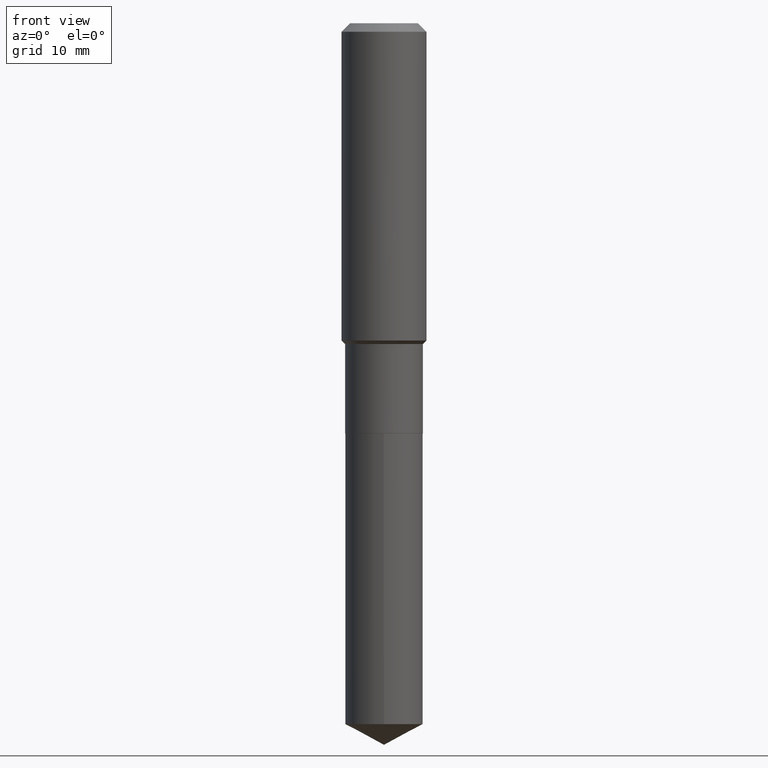
[diagram: clean part render]
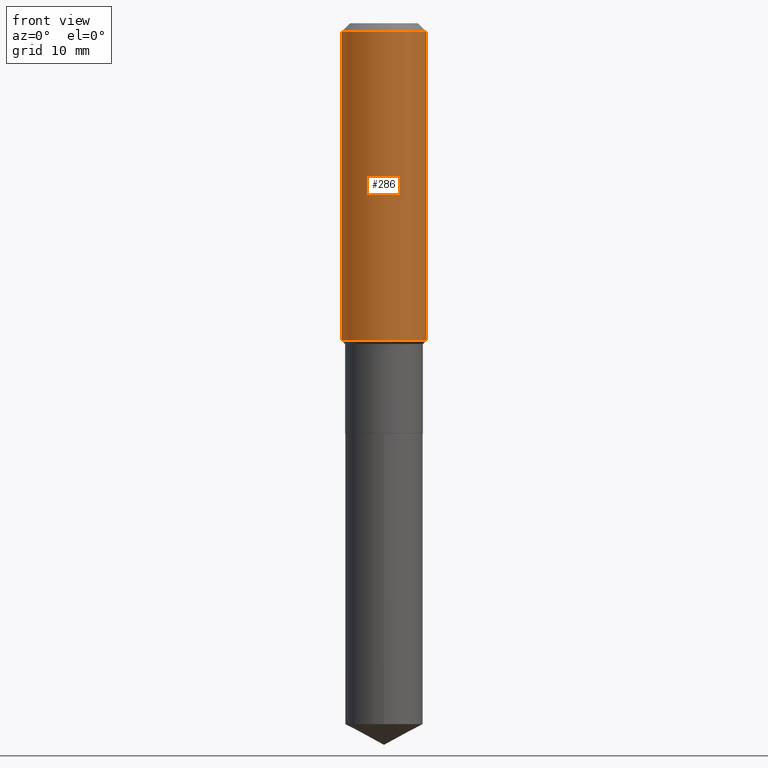
[diagram: same view with one face highlighted and labeled with its STEP entity id]
A machine part, front view. The second image highlights one B-rep face of the part: STEP entity #286.
In plain terms, the highlighted cylindrical surface (partial cylindrical patch) has radius 5.9995 mm, axis along (-0, 0, 1).
Its self-contained STEP definition (entity closure, byte-faithful):
#17 = AXIS2_PLACEMENT_3D ( 'NONE', #303, #269, #112 ) ;
#32 = DIRECTION ( 'NONE',  ( -2.445468806185136877E-29, 3.491481338843145188E-15, 1.000000000000000000 ) ) ;
#33 = EDGE_CURVE ( 'NONE', #186, #402, #152, .T. ) ;
#65 = LINE ( 'NONE', #133, #78 ) ;
#66 = ORIENTED_EDGE ( 'NONE', *, *, #33, .T. ) ;
#78 = VECTOR ( 'NONE', #479, 39.37007874015748143 ) ;
#104 = VERTEX_POINT ( 'NONE', #317 ) ;
#108 = CYLINDRICAL_SURFACE ( 'NONE', #326, 0.2362000000000001043 ) ;
#110 = DIRECTION ( 'NONE',  ( 1.000000000000000000, -6.982962677686266711E-15, 4.876176775795935793E-29 ) ) ;
#112 = DIRECTION ( 'NONE',  ( 1.000000000000000000, -6.982962677686266711E-15, 0.000000000000000000 ) ) ;
#117 = DIRECTION ( 'NONE',  ( -2.445468806185136597E-29, 3.491481338843145583E-15, 1.000000000000000000 ) ) ;
#133 = CARTESIAN_POINT ( 'NONE',  ( 0.2362000000000001043, -1.649375784469496920E-15, 1.151752954443000508E-29 ) ) ;
#138 = EDGE_CURVE ( 'NONE', #402, #379, #65, .T. ) ;
#152 = CIRCLE ( 'NONE', #283, 0.2362000000000002153 ) ;
#186 = VERTEX_POINT ( 'NONE', #439 ) ;
#218 = CIRCLE ( 'NONE', #17, 0.2361999999999999933 ) ;
#224 = LINE ( 'NONE', #483, #461 ) ;
#231 = CARTESIAN_POINT ( 'NONE',  ( 0.2362000000000002153, -7.814109810397897019E-15, -1.765649999999999720 ) ) ;
#237 = DIRECTION ( 'NONE',  ( 1.000000000000000000, -6.982962677686266711E-15, 0.000000000000000000 ) ) ;
#241 = DIRECTION ( 'NONE',  ( -2.445468806185136597E-29, 3.491481338843145583E-15, 1.000000000000000000 ) ) ;
#265 = FACE_OUTER_BOUND ( 'NONE', #330, .T. ) ;
#269 = DIRECTION ( 'NONE',  ( -2.445468806185136597E-29, 3.491481338843145583E-15, 1.000000000000000000 ) ) ;
#270 = EDGE_CURVE ( 'NONE', #104, #379, #218, .T. ) ;
#283 = AXIS2_PLACEMENT_3D ( 'NONE', #469, #241, #237 ) ;
#286 = ADVANCED_FACE ( 'NONE', ( #265 ), #108, .T. ) ;
#291 = ORIENTED_EDGE ( 'NONE', *, *, #138, .T. ) ;
#303 = CARTESIAN_POINT ( 'NONE',  ( 1.155239464041865506E-30, -1.649375784469511859E-16, -0.04724000000000028177 ) ) ;
#310 = CARTESIAN_POINT ( 'NONE',  ( 0.2361999999999999933, -1.814313362916447440E-15, -0.04724000000000028177 ) ) ;
#317 = CARTESIAN_POINT ( 'NONE',  ( -0.2361999999999999933, -1.486533860322317535E-15, -0.04724000000000028177 ) ) ;
#326 = AXIS2_PLACEMENT_3D ( 'NONE', #419, #117, #110 ) ;
#330 = EDGE_LOOP ( 'NONE', ( #420, #66, #291, #457 ) ) ;
#379 = VERTEX_POINT ( 'NONE', #310 ) ;
#402 = VERTEX_POINT ( 'NONE', #231 ) ;
#419 = CARTESIAN_POINT ( 'NONE',  ( 0.000000000000000000, 0.000000000000000000, 0.000000000000000000 ) ) ;
#420 = ORIENTED_EDGE ( 'NONE', *, *, #433, .F. ) ;
#433 = EDGE_CURVE ( 'NONE', #186, #104, #224, .T. ) ;
#439 = CARTESIAN_POINT ( 'NONE',  ( -0.2362000000000002153, -4.486432084063041733E-15, -1.765649999999999720 ) ) ;
#457 = ORIENTED_EDGE ( 'NONE', *, *, #270, .F. ) ;
#461 = VECTOR ( 'NONE', #32, 39.37007874015748143 ) ;
#469 = CARTESIAN_POINT ( 'NONE',  ( 4.317841997640785659E-29, -6.164734025928398916E-15, -1.765649999999999720 ) ) ;
#479 = DIRECTION ( 'NONE',  ( -2.445468806185136877E-29, 3.491481338843145188E-15, 1.000000000000000000 ) ) ;
#483 = CARTESIAN_POINT ( 'NONE',  ( -0.2362000000000001043, 1.678301941865357380E-15, -1.161852468318209317E-29 ) ) ;